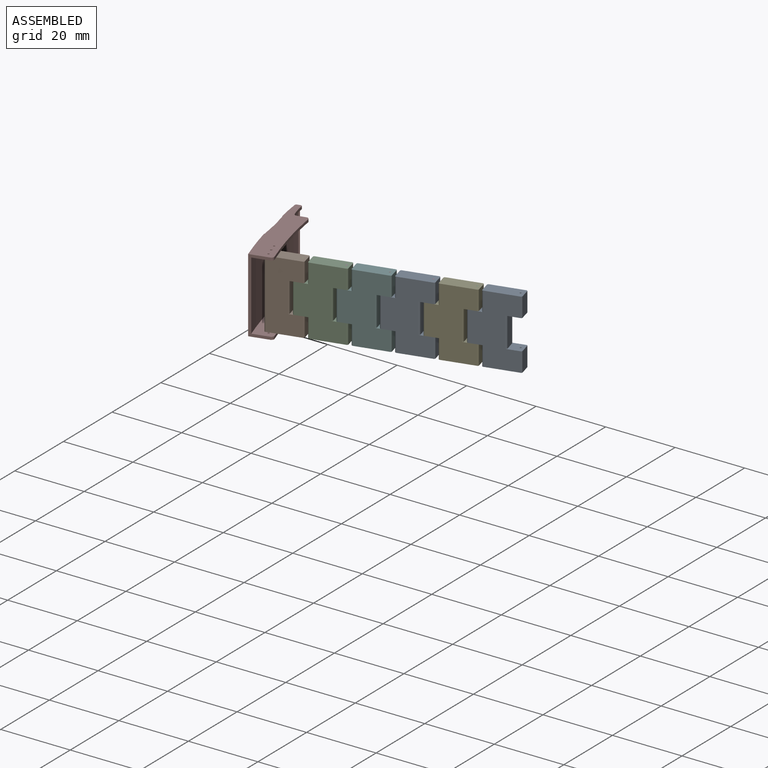
[diagram: assembled view]
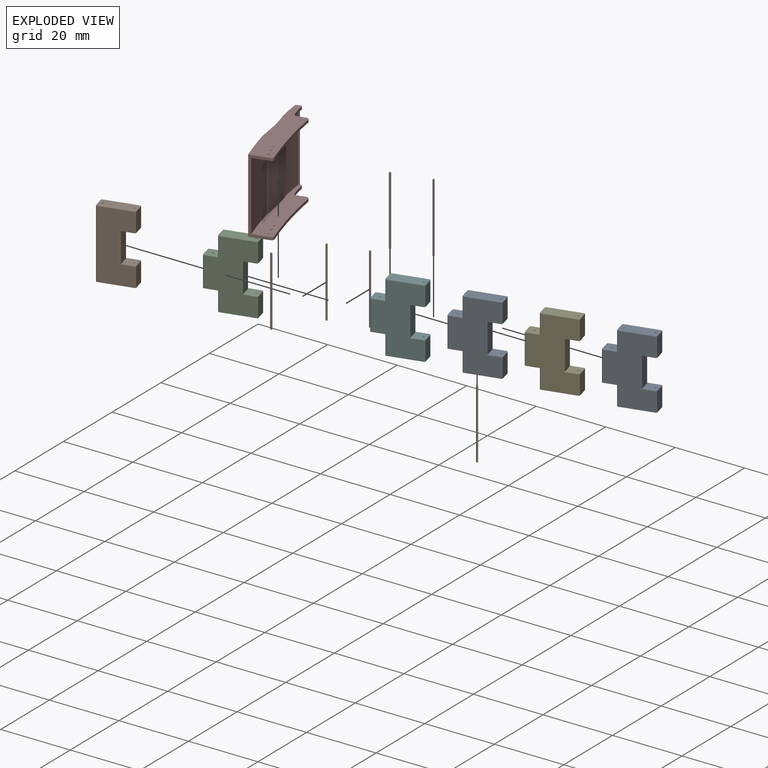
[diagram: exploded view]
GUIDED TOUR — MATED ASSEMBLY (Onshape document a81b925564c89b1a25a5d673, AutoMate assembly a81b925564c89b1a25a5d673_9c8e43b11b743d8466d85509_5456db0fa8066f07e2625f1c_default)

This assembly has 13 components, labeled P0..P12 below (a component is one placed occurrence of a part; the same part can appear more than once), held together by 12 mates. A mate is a constraint between two components; its type names the relative motion it leaves free:
  FASTENED — locks the two components together rigidly (no relative motion),
  REVOLUTE — leaves rotation about the listed axis free (a hinge).
Axis/direction vectors are unit vectors and 'through' points are millimeter coordinates, both in the assembly's world frame.

MATES
  1. FASTENED "Fastened 5": P11 <-> P8, direction (0.000, 0.000, -1.000) through (9.94, -53.46, -15.69) mm
  2. FASTENED "Fastened 8": P0 <-> P4, direction (0.000, 0.000, 1.000) through (20.58, -50.76, -1.46) mm
  3. REVOLUTE "Revolute 1": P3 <-> P10, axis (0.000, 0.000, -1.000) through (-11.34, -58.85, 4.13) mm
  4. FASTENED "Fastened 9": P1 <-> P10, direction (0.000, 0.000, 1.000) through (-21.98, -61.54, -10.10) mm
  5. FASTENED "Fastened 1": P12 <-> P1, direction (0.000, 0.000, 1.000) through (-21.98, -61.54, 4.13) mm
  6. FASTENED "Fastened 4": P8 <-> P5, direction (0.000, 0.000, -1.000) through (-0.70, -56.15, -10.10) mm
  7. FASTENED "Fastened 3": P6 <-> P5, direction (0.000, 0.000, -1.000) through (-0.70, -56.15, -15.69) mm
  8. REVOLUTE "Revolute 2": P7 <-> P9, axis (0.000, 0.000, -1.000) through (-29.72, -63.50, 4.13) mm
  9. FASTENED "Fastened 6": P4 <-> P8, direction (0.000, 0.000, -1.000) through (9.94, -53.46, -10.10) mm
  10. FASTENED "Fastened 10": P9 <-> P1, direction (0.000, 0.000, 1.000) through (-29.72, -63.50, 4.13) mm
  11. FASTENED "Fastened 7": P2 <-> P4, direction (0.000, 0.000, 1.000) through (20.58, -50.76, 4.13) mm
  12. FASTENED "Fastened 2": P5 <-> P10, direction (0.000, 0.000, -1.000) through (-11.34, -58.85, -10.10) mm

ASSEMBLY ORDER
  1. P9 — the base component [order verified]
  2. P7 [order verified]
  3. P6 [order verified]
  4. P5 [order verified]
  5. P11 [order verified]
  6. P8 [order verified]
  7. P2 [order verified]
  8. P4 [order verified]
  9. P3 [order verified]
  10. P10 [order verified]
  11. P12 [order verified]
  12. P1 [order verified]
  13. P0 [order verified]
Order-tag legend:
  [order verified] — this step's position reverses a verified removal order: the component was checked to insert without passing through the ones already placed.

Of the 13 components, 12 carry the full construction recipe — the FeatureScript program that regenerates the part's solid from scratch; the rest are supplied as boundary geometry only.
Because this assembly has more than 12 components, the tour below covers the 12 most significant ones individually (every recipe-attached component first, then the largest by part volume), in assembly order; the remaining 1 are summarized together in a grouped section at the end.
Each toured component is shown spotlighted twice — in the assembled view, then in the exploded view, where a leader line traces a displaced component back to its assembled socket (saturated green if recipe-attached, orange if geometry-only; every other component desaturated gray) — followed by its recipe or geometry summary and the mates that hold it.
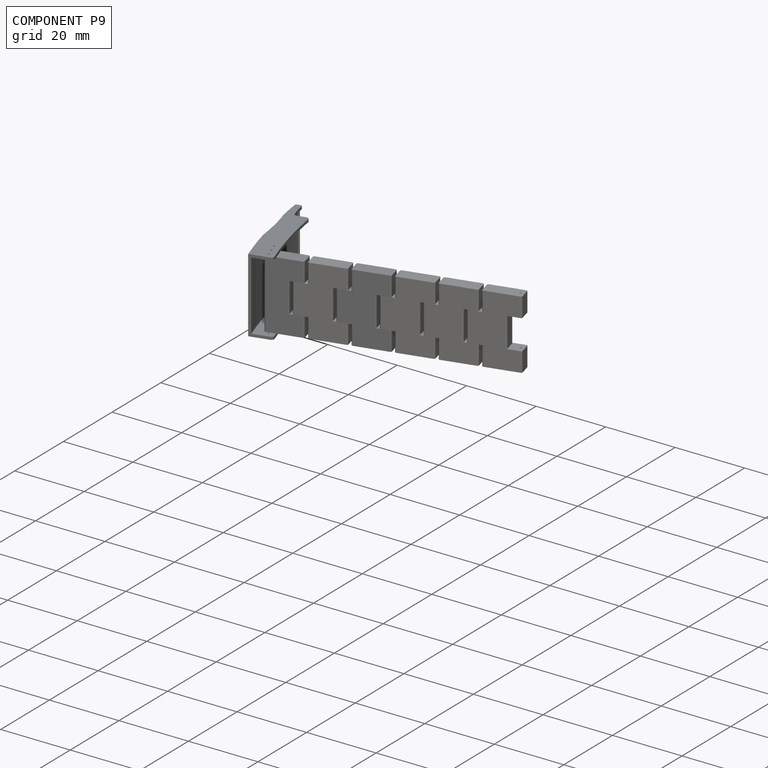
[diagram: component P9 — assembled]
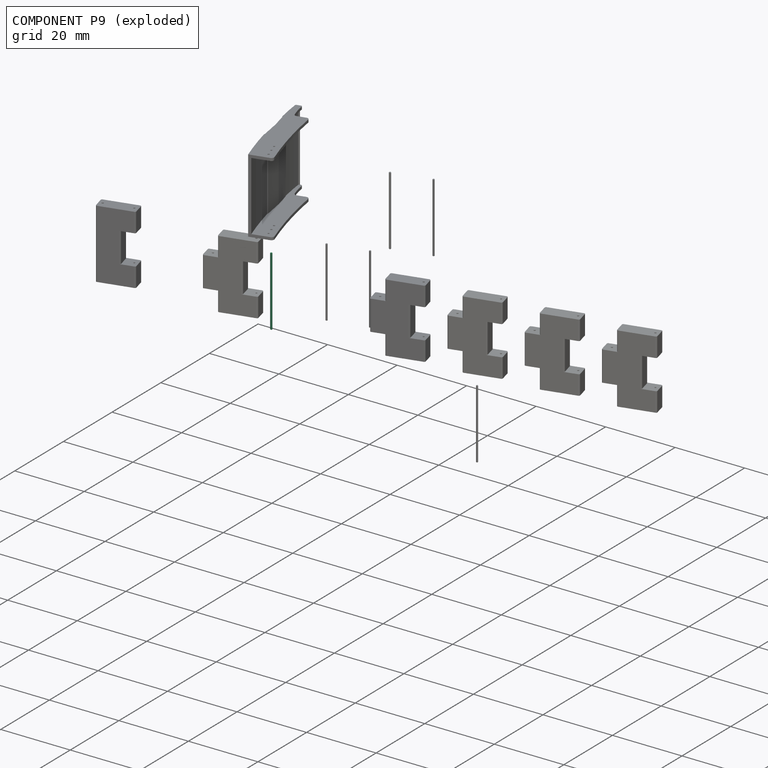
[diagram: component P9 — exploded]
COMPONENT P9 — same part as P2 (CADFS 00328580); its construction recipe is shown at P2.
Held by: REVOLUTE mate "Revolute 2" to P7; FASTENED mate "Fastened 10" to P1.
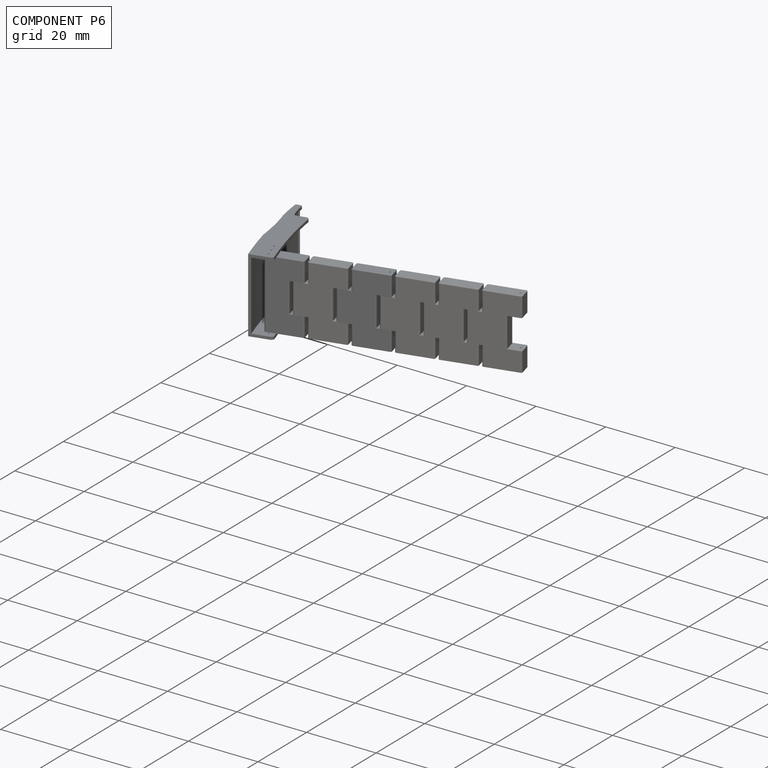
[diagram: component P6 — assembled]
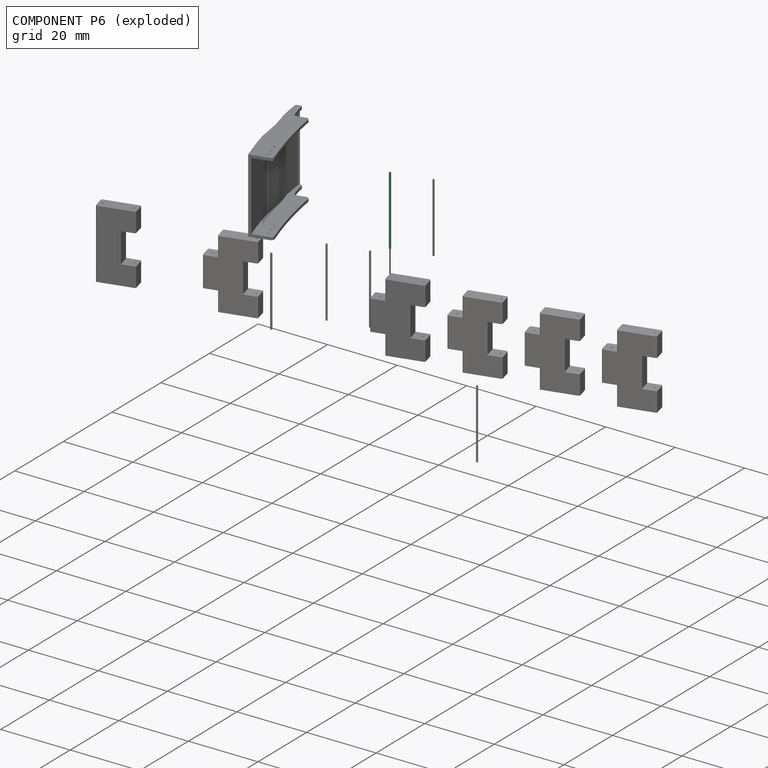
[diagram: component P6 — exploded]
COMPONENT P6 — same part as P2 (CADFS 00328580); its construction recipe is shown at P2.
Held by: FASTENED mate "Fastened 3" to P5.
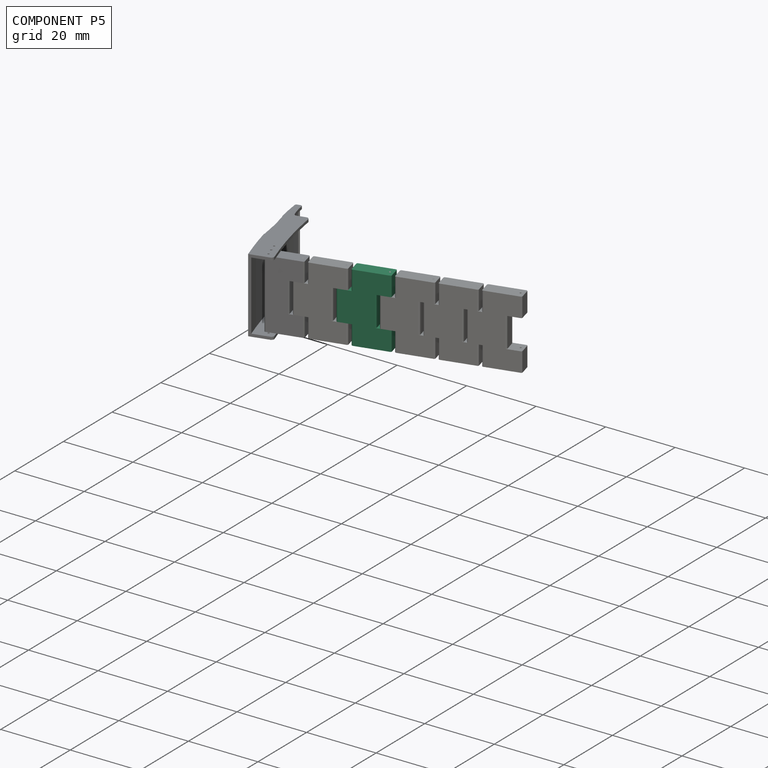
[diagram: component P5 — assembled]
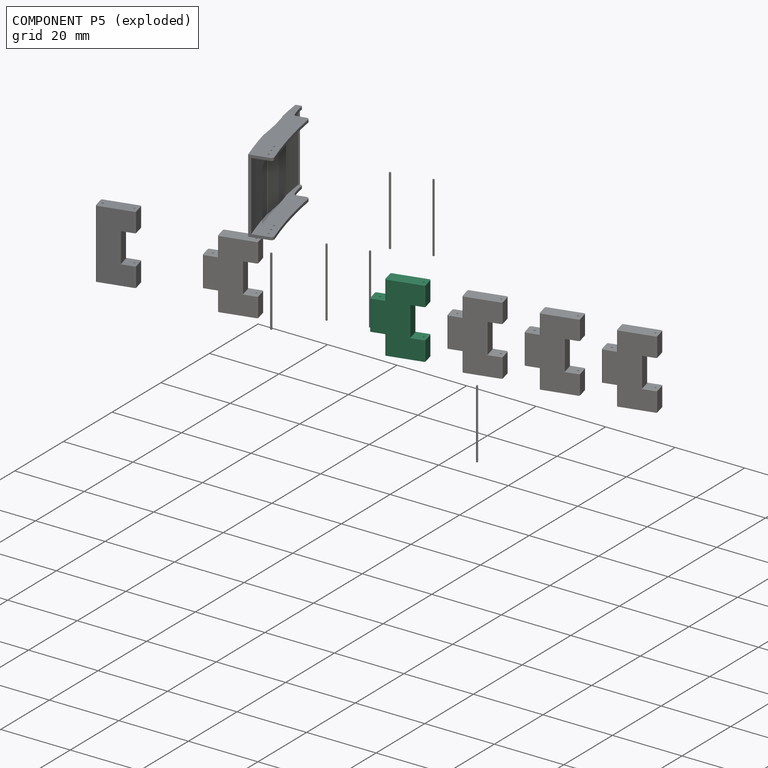
[diagram: component P5 — exploded]
COMPONENT P5 — same part as P0 (CADFS 00328578); its construction recipe is shown at P0.
Held by: FASTENED mate "Fastened 4" to P8; FASTENED mate "Fastened 3" to P6; FASTENED mate "Fastened 2" to P10.
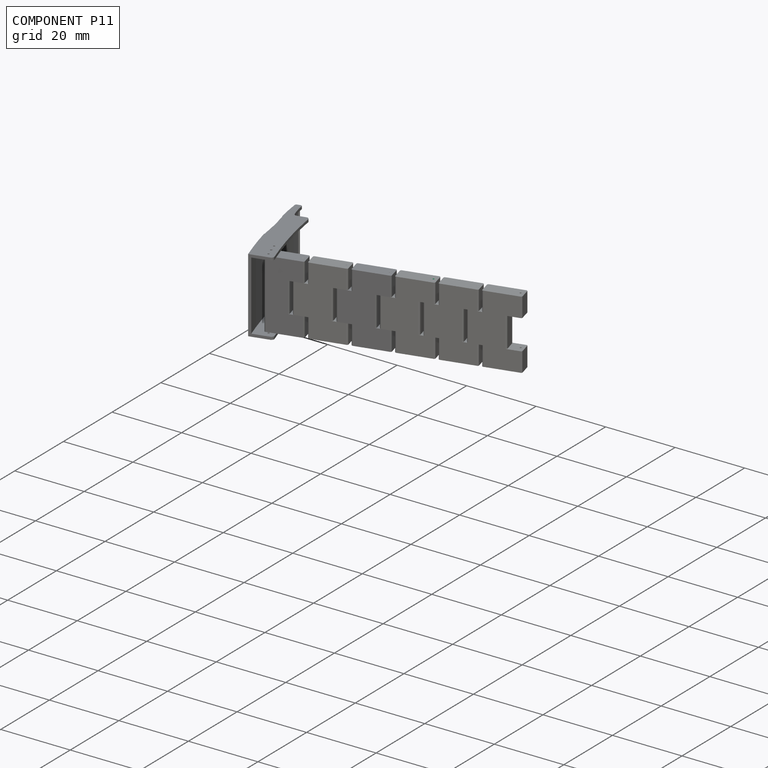
[diagram: component P11 — assembled]
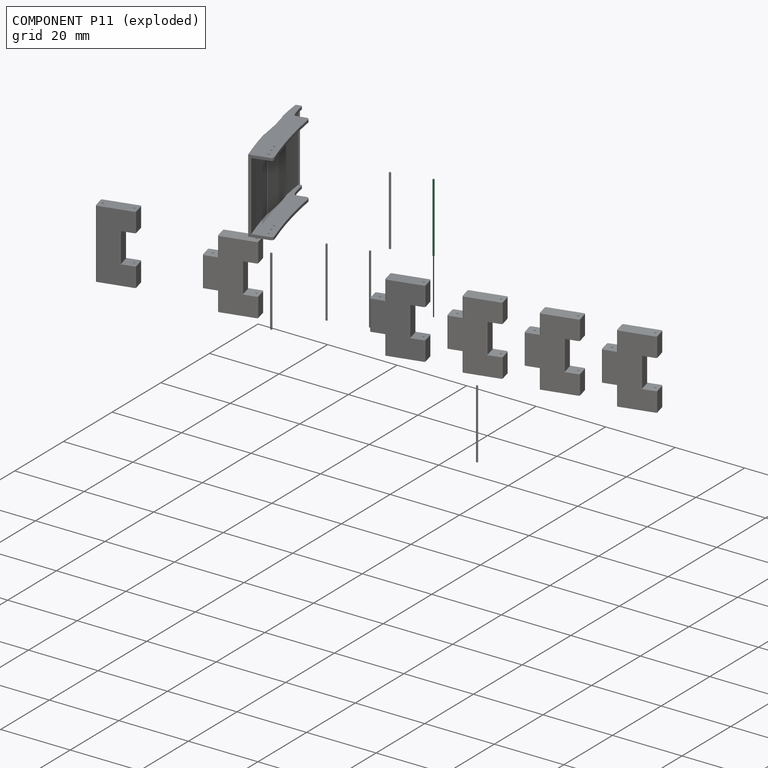
[diagram: component P11 — exploded]
COMPONENT P11 — same part as P2 (CADFS 00328580); its construction recipe is shown at P2.
Held by: FASTENED mate "Fastened 5" to P8.
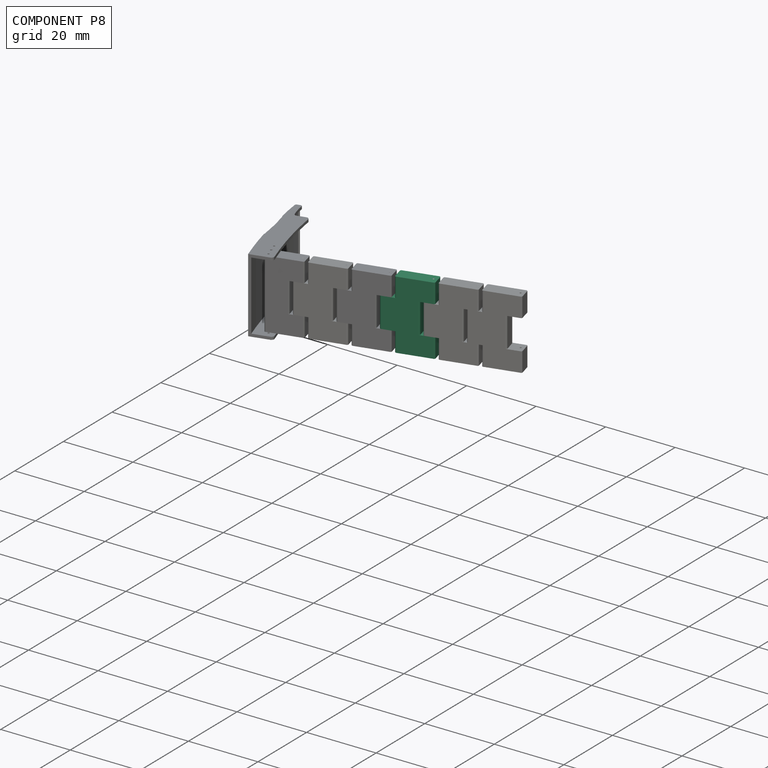
[diagram: component P8 — assembled]
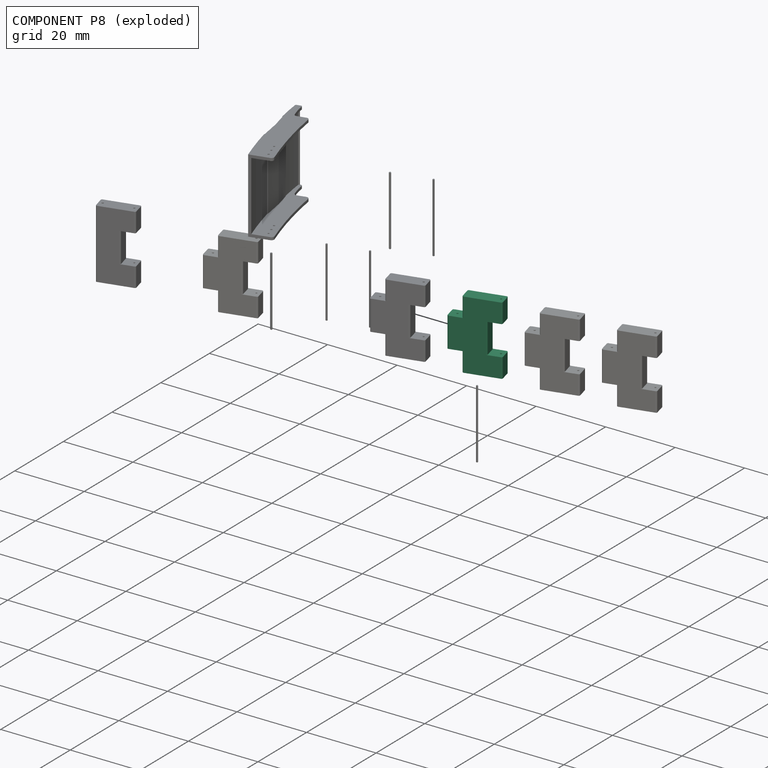
[diagram: component P8 — exploded]
COMPONENT P8 — same part as P0 (CADFS 00328578); its construction recipe is shown at P0.
Held by: FASTENED mate "Fastened 5" to P11; FASTENED mate "Fastened 4" to P5; FASTENED mate "Fastened 6" to P4.
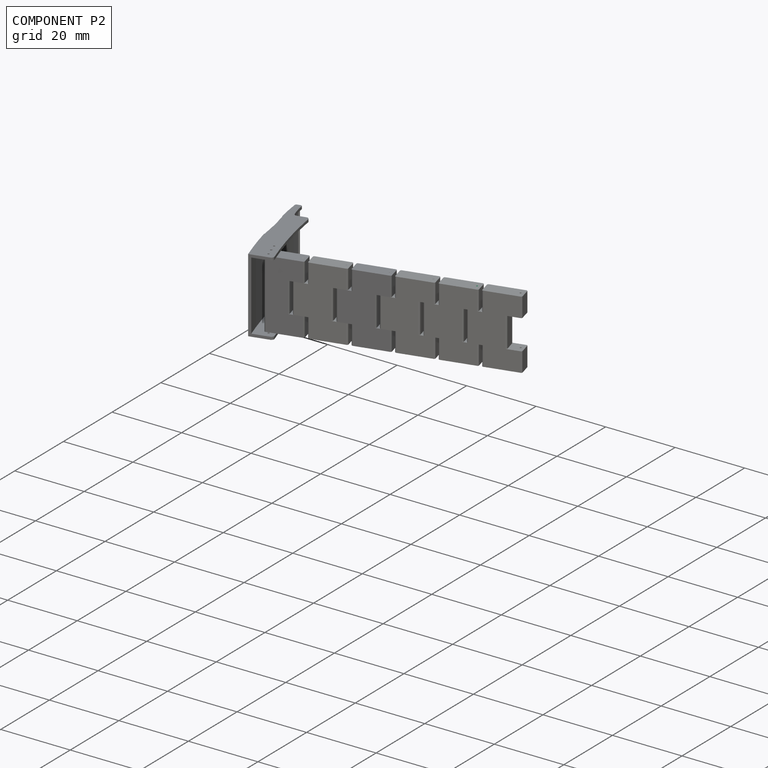
[diagram: component P2 — assembled]
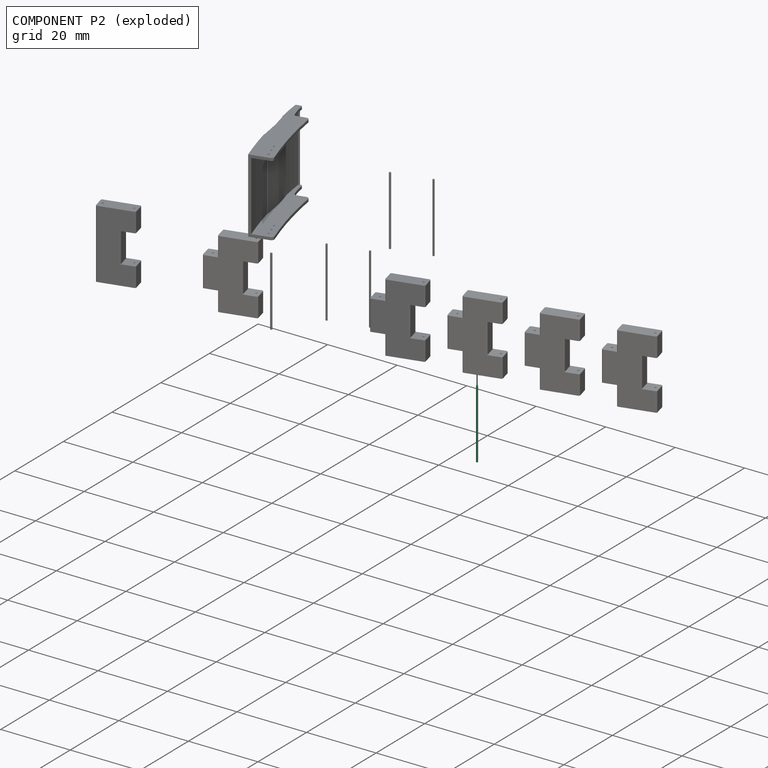
[diagram: component P2 — exploded]
COMPONENT P2 — recipe-attached (CADFS 00328580, mesh-verified: the recipe's output STEP matches this component's geometry to below the mesh-comparison resolution (tessellation chordal tolerance ~0.0299 mm)).
Held by: FASTENED mate "Fastened 7" to P4.
Construction recipe (FeatureScript — the CAD program that rebuilds this solid; sketch coordinates are in the units given by the * unit suffixes, e.g. mm):

FeatureScript 1511;
import(path : "onshape/std/geometry.fs", version : "1511.0");
import(path : "onshape/std/common.fs", version : "1511.0");
const mm = millimeter;
const VERTEX = EntityType.VERTEX;
const EDGE = EntityType.EDGE;
const FACE = EntityType.FACE;
const BODY = EntityType.BODY;
function v(x, y){return vector(x, y);}
function OD(order){return orderDisambiguation(order);}
function OSD(set){return originalSetDisambiguation(set);}
function TD(topology){return topologyDisambiguation(topology);}
function TDD(query){return trueDependencyDisambiguation(query);}
function sQuery(a, b, c) {return sketchEntityQuery(a, b, c);}

annotation { "Feature Type Name" : "Feature", "Feature Type Description" : "" }
export const myFeature = defineFeature(function(context is Context, id is Id, definition is map)
    precondition{}
    {
        {
            var Q0;
            Q0=qCreatedBy(makeId("Front.planeOp"),FACE);
            var sketch = newSketch(context, id + "F0", { "sketchPlane" : qUnion([Q0])});
            skCircle(sketch, "E0", {"center": v(0, 0) * mm, "radius": 0.25 * mm});
            skSolve(sketch);
        }
        {
            var Q0;
            Q0 = qSketchRegion(id + "F0", true);
            extrude(context, id + "F1", {"entities" : qUnion([Q0]), "depth" : 19.94 * mm});
        }
        {
            var Q0;
            Q0=makeQuery(id+"F1.opExtrude","CAP_EDGE",EDGE,{"disambiguationData":[OSD([sQuery(id+"F0.wireOp",EDGE,"E0")])],"isStart":false});
            var Q1;
            Q1=makeQuery(id+"F1.opExtrude","CAP_EDGE",EDGE,{"disambiguationData":[OSD([sQuery(id+"F0.wireOp",EDGE,"E0")])],"isStart":true});
            chamfer(context, id + "F2", {"entities" : qUnion([Q0, Q1]), "width" : 0.05 * mm, "tangentPropagation" : true});
        }
    });
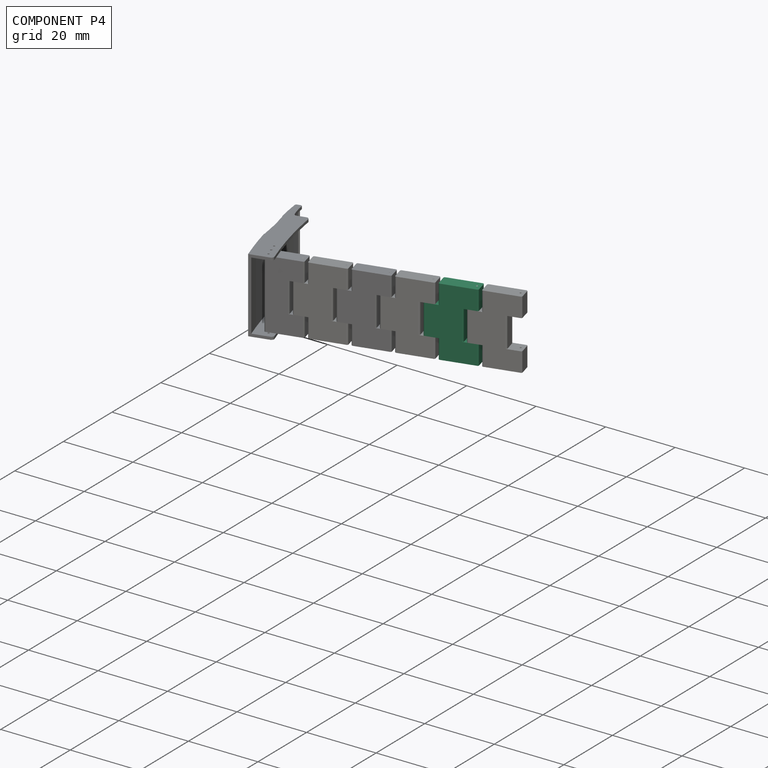
[diagram: component P4 — assembled]
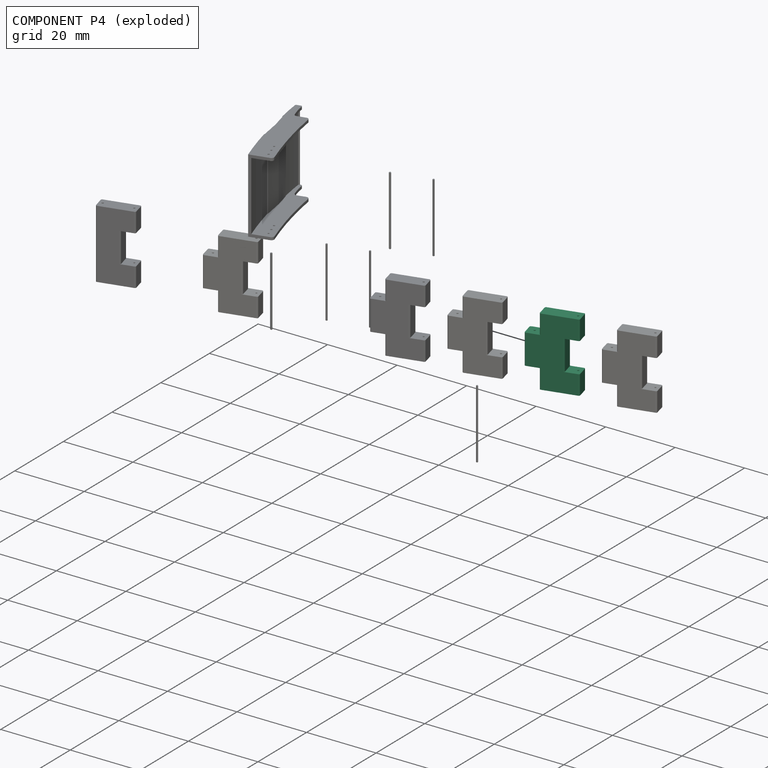
[diagram: component P4 — exploded]
COMPONENT P4 — same part as P0 (CADFS 00328578); its construction recipe is shown at P0.
Held by: FASTENED mate "Fastened 8" to P0; FASTENED mate "Fastened 6" to P8; FASTENED mate "Fastened 7" to P2.
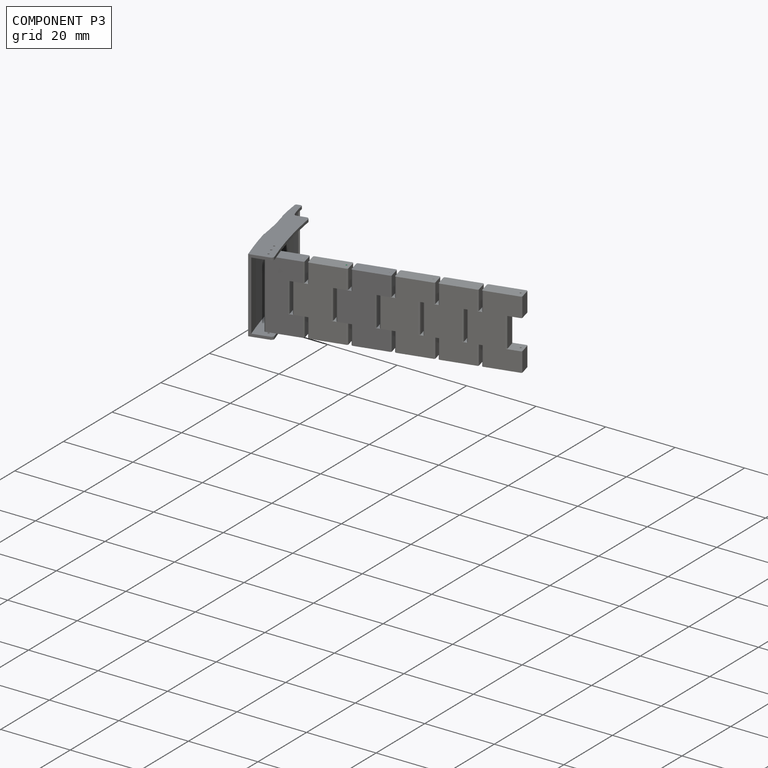
[diagram: component P3 — assembled]
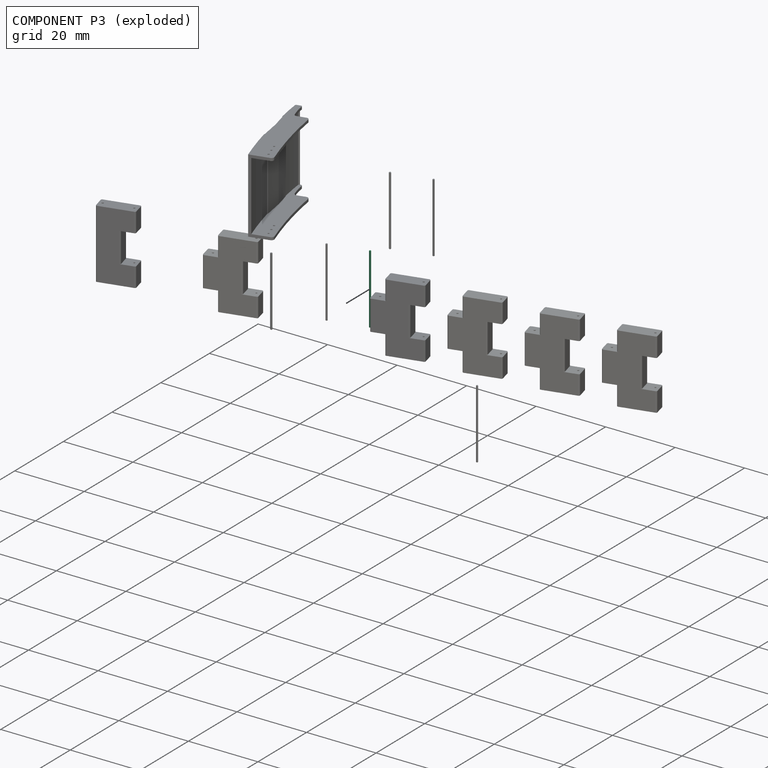
[diagram: component P3 — exploded]
COMPONENT P3 — same part as P2 (CADFS 00328580); its construction recipe is shown at P2.
Held by: REVOLUTE mate "Revolute 1" to P10.
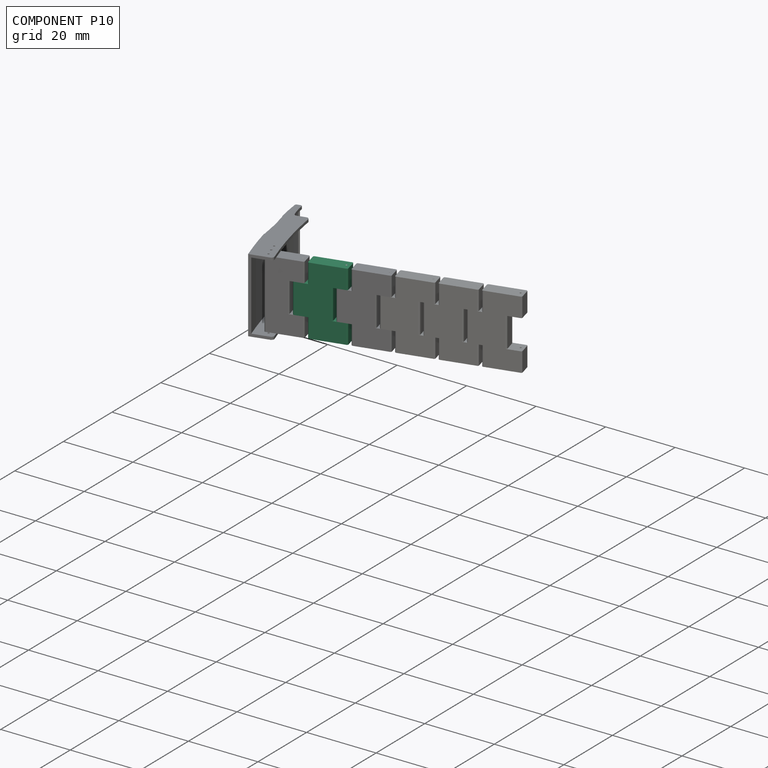
[diagram: component P10 — assembled]
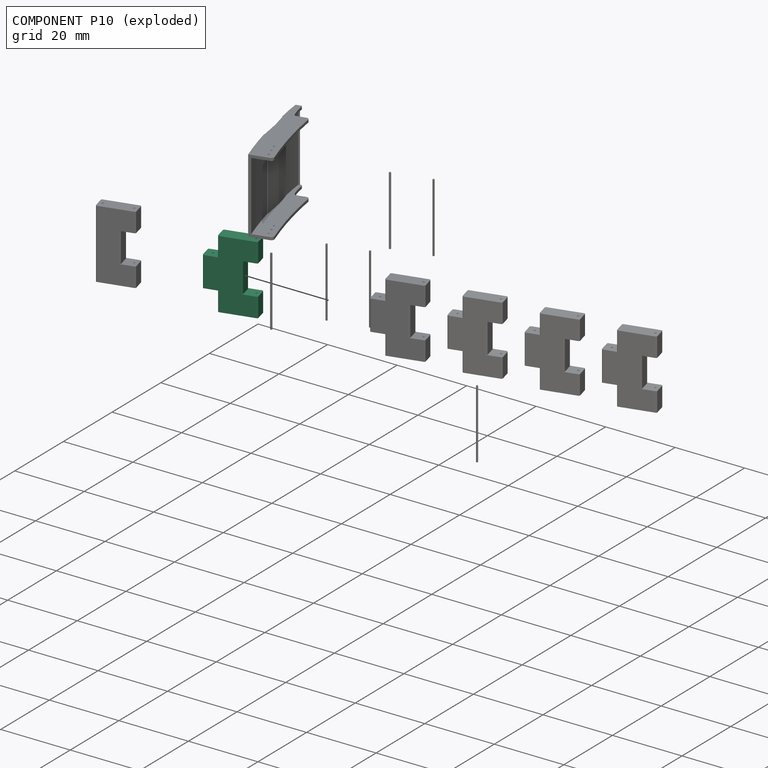
[diagram: component P10 — exploded]
COMPONENT P10 — same part as P0 (CADFS 00328578); its construction recipe is shown at P0.
Held by: REVOLUTE mate "Revolute 1" to P3; FASTENED mate "Fastened 9" to P1; FASTENED mate "Fastened 2" to P5.
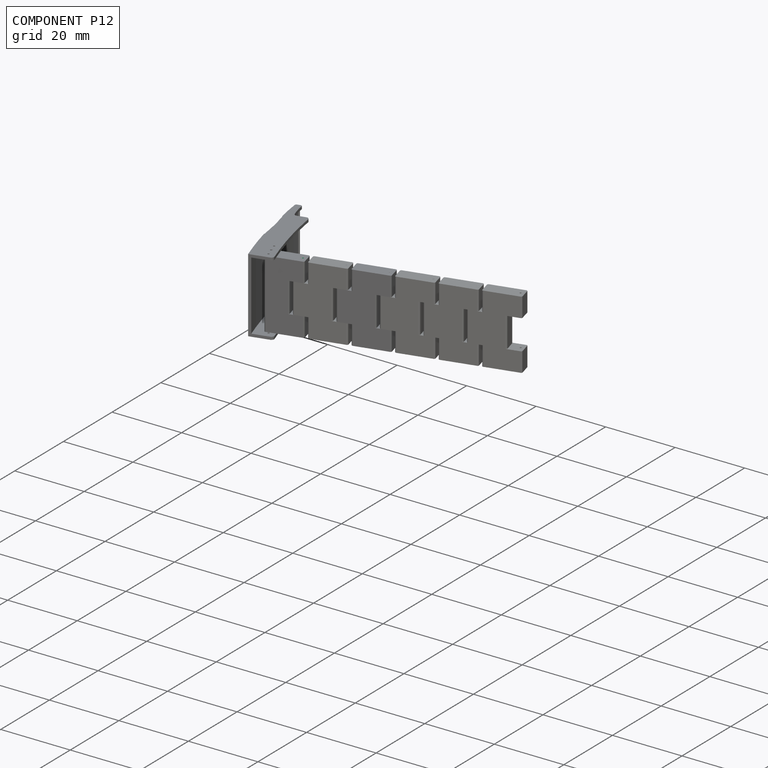
[diagram: component P12 — assembled]
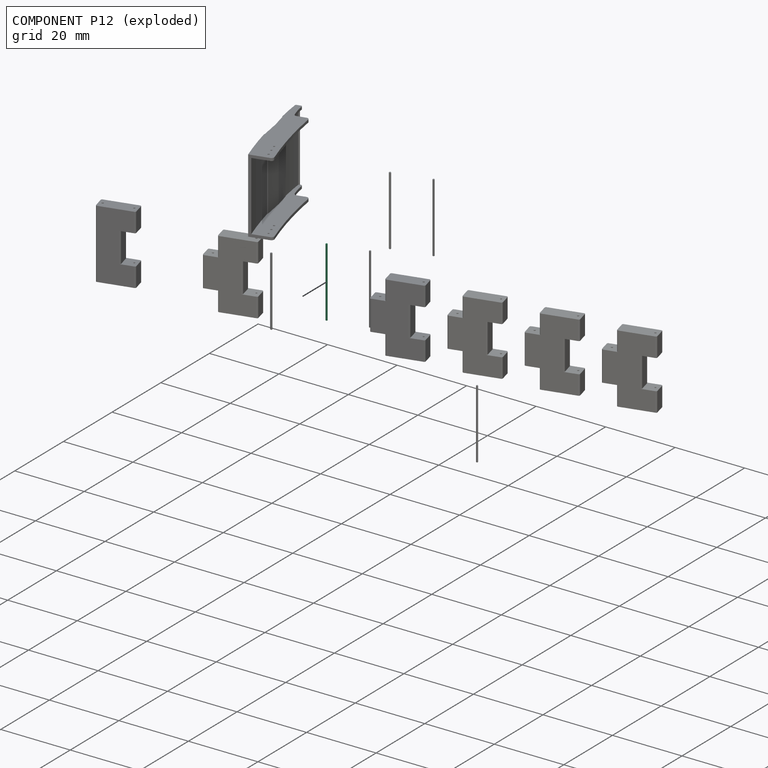
[diagram: component P12 — exploded]
COMPONENT P12 — same part as P2 (CADFS 00328580); its construction recipe is shown at P2.
Held by: FASTENED mate "Fastened 1" to P1.
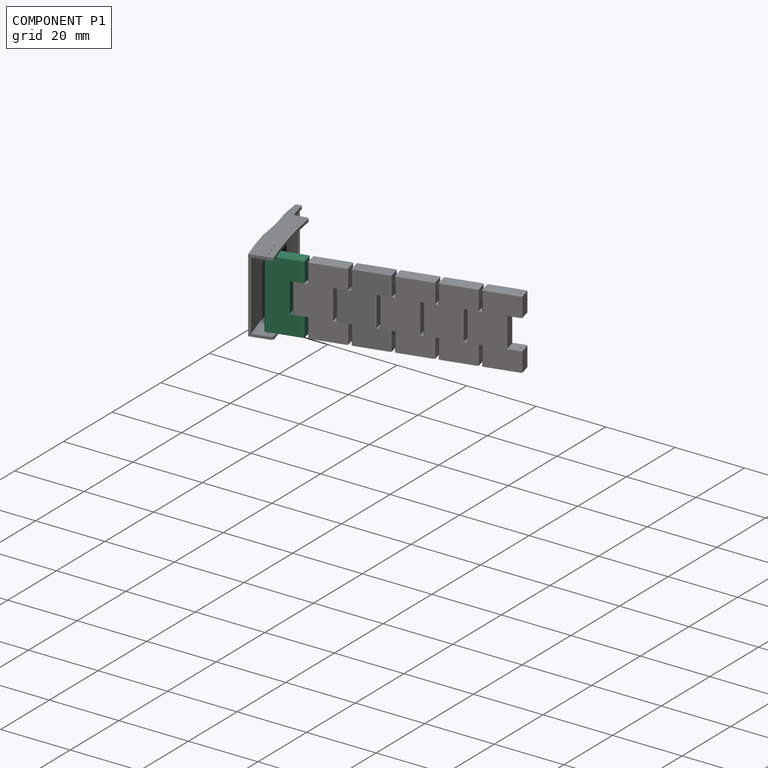
[diagram: component P1 — assembled]
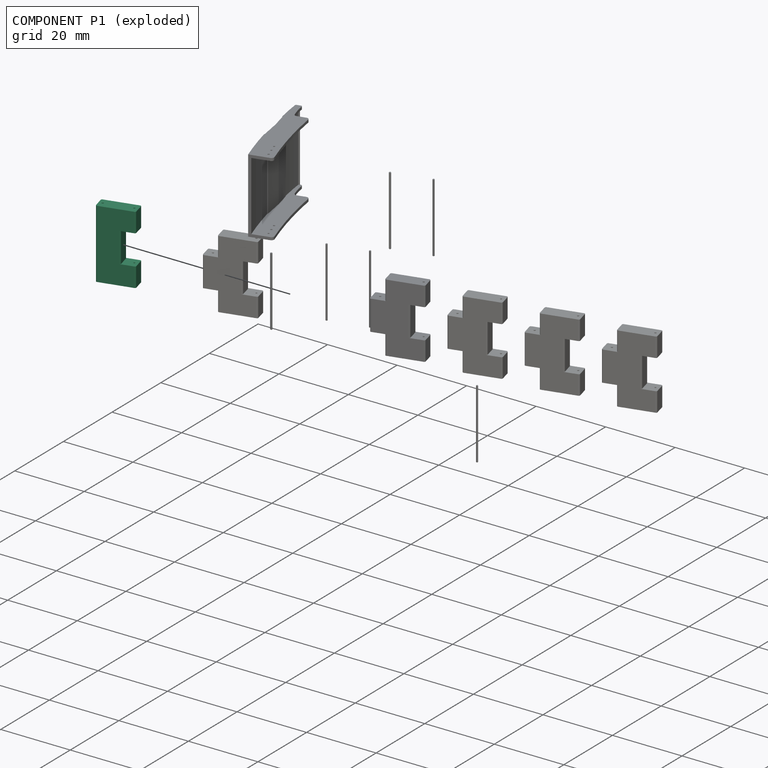
[diagram: component P1 — exploded]
COMPONENT P1 — recipe-attached (CADFS 00328579, mesh-verified: the recipe's output STEP matches this component's geometry to below the mesh-comparison resolution (tessellation chordal tolerance ~0.0339 mm)).
Held by: FASTENED mate "Fastened 9" to P10; FASTENED mate "Fastened 1" to P12; FASTENED mate "Fastened 10" to P9.
Construction recipe (FeatureScript — the CAD program that rebuilds this solid; sketch coordinates are in the units given by the * unit suffixes, e.g. mm):

FeatureScript 1511;
import(path : "onshape/std/geometry.fs", version : "1511.0");
import(path : "onshape/std/common.fs", version : "1511.0");
const mm = millimeter;
const VERTEX = EntityType.VERTEX;
const EDGE = EntityType.EDGE;
const FACE = EntityType.FACE;
const BODY = EntityType.BODY;
function v(x, y){return vector(x, y);}
function OD(order){return orderDisambiguation(order);}
function OSD(set){return originalSetDisambiguation(set);}
function TD(topology){return topologyDisambiguation(topology);}
function TDD(query){return trueDependencyDisambiguation(query);}
function sQuery(a, b, c) {return sketchEntityQuery(a, b, c);}

annotation { "Feature Type Name" : "Feature", "Feature Type Description" : "" }
export const myFeature = defineFeature(function(context is Context, id is Id, definition is map)
    precondition{}
    {
        {
            var Q0;
            Q0=qCreatedBy(makeId("Front.planeOp"),FACE);
            var sketch = newSketch(context, id + "F0", { "sketchPlane" : qUnion([Q0])});
            skLineSegment(sketch, "E0.bottom", {"start": v(17.02, -29.15) * mm, "end": v(27.18, -29.15) * mm});
            skLineSegment(sketch, "E0.top", {"start": v(17.02, -48.96) * mm, "end": v(27.18, -48.96) * mm});
            skLineSegment(sketch, "E0.left", {"start": v(17.02, -29.15) * mm, "end": v(17.02, -34.73) * mm});
            skLineSegment(sketch, "E0.right", {"start": v(27.18, -29.15) * mm, "end": v(27.18, -34.73) * mm});
            skLineSegment(sketch, "E1", {"start": v(17.02, -48.96) * mm, "end": v(23.37, -48.96) * mm});
            skLineSegment(sketch, "E2", {"start": v(23.37, -43.37) * mm, "end": v(23.37, -34.73) * mm});
            skLineSegment(sketch, "E3", {"start": v(27.18, -34.73) * mm, "end": v(23.37, -34.73) * mm});
            skLineSegment(sketch, "E4", {"start": v(27.18, -48.96) * mm, "end": v(27.18, -43.37) * mm});
            skLineSegment(sketch, "E5", {"start": v(27.18, -43.37) * mm, "end": v(23.37, -43.37) * mm});
            skLineSegment(sketch, "E6.trimOffspring", {"start": v(27.18, -43.37) * mm, "end": v(27.18, -48.96) * mm});
            skLineSegment(sketch, "E7.trimOffspring", {"start": v(17.02, -43.37) * mm, "end": v(17.02, -48.96) * mm});
            skLineSegment(sketch, "E8", {"start": v(17.02, -43.37) * mm, "end": v(23.37, -43.37) * mm});
            skLineSegment(sketch, "E9", {"start": v(23.37, -34.73) * mm, "end": v(17.02, -34.73) * mm});
            skLineSegment(sketch, "E10", {"start": v(17.02, -34.73) * mm, "end": v(17.02, -43.37) * mm});
            skPoint(sketch, "E11.start.orphan", {"position": v(13.21, -34.73) * mm});
            skSolve(sketch);
        }
        {
            var Q0;
            Q0=makeQuery(id+"F0.imprint","IMPRINT",FACE,{"disambiguationData":[TD([[makeQuery(id+"F0.imprint","IMPRINT",EDGE,{"derivedFrom":sQuery(id+"F0.wireOp",EDGE,"E2")}),1.0]])]});
            extrude(context, id + "F1", {"entities" : qUnion([Q0]), "depth" : 3.8 * mm});
        }
        {
            var Q0;
            Q0=makeQuery(id+"F1.opExtrude","CAP_FACE",FACE,{"disambiguationData":[OSD([sQuery(id+"F0.wireOp",EDGE,"E2"),sQuery(id+"F0.wireOp",EDGE,"kWP5FoFF-B6KL-BZVV-yxeF-1pJlTzE3f1qg"),sQuery(id+"F0.wireOp",EDGE,"NCTPWaSt-j8r5-npNt-1snH-QZKrF3ifEW0c"),sQuery(id+"F0.wireOp",EDGE,"E11"),sQuery(id+"F0.wireOp",EDGE,"E8"),sQuery(id+"F0.wireOp",EDGE,"E9")])],"isStart":false});
            var sketch = newSketch(context, id + "F2", { "sketchPlane" : qUnion([Q0])});
            skLineSegment(sketch, "E12.bottom", {"start": v(17.02, -29.15) * mm, "end": v(27.18, -29.15) * mm});
            skLineSegment(sketch, "E12.left", {"start": v(17.02, -29.15) * mm, "end": v(17.02, -34.73) * mm});
            skLineSegment(sketch, "E13", {"start": v(27.18, -29.15) * mm, "end": v(27.18, -34.73) * mm});
            skLineSegment(sketch, "E14", {"start": v(27.18, -34.73) * mm, "end": v(23.37, -34.73) * mm});
            skLineSegment(sketch, "E15", {"start": v(23.37, -34.73) * mm, "end": v(17.02, -34.73) * mm});
            skLineSegment(sketch, "E16.MirrorCS", {"start": v(23.37, -43.37) * mm, "end": v(17.02, -43.37) * mm});
            skLineSegment(sketch, "E17.MirrorCS", {"start": v(27.18, -43.37) * mm, "end": v(23.37, -43.37) * mm});
            skLineSegment(sketch, "E18.MirrorCS", {"start": v(27.18, -48.96) * mm, "end": v(27.18, -43.37) * mm});
            skLineSegment(sketch, "E19.MirrorCS", {"start": v(17.02, -48.96) * mm, "end": v(17.02, -43.37) * mm});
            skLineSegment(sketch, "E20.MirrorCS", {"start": v(17.02, -48.96) * mm, "end": v(27.18, -48.96) * mm});
            skSolve(sketch);
        }
        {
            var Q0;
            Q0=qSketchRegion(id+"F2",true);
            extrude(context, id + "F3", {"entities" : qUnion([Q0]), "operationType" : NewBodyOperationType.ADD, "oppositeDirection" : true, "depth" : 3.81 * mm, "hasSecondDirection" : true, "secondDirectionOppositeDirection" : true, "secondDirectionDepth" : 0 * mm});
        }
        {
            var Q0;
            Q0=makeQuery(id+"F3.opExtrude","SWEPT_FACE",FACE,{"disambiguationData":[OSD([sQuery(id+"F2.wireOp",EDGE,"E20.MirrorCS")])]});
            var sketch = newSketch(context, id + "F4", { "sketchPlane" : qUnion([Q0])});
            skCircle(sketch, "E21", {"center": v(26.1, 1.9) * mm, "radius": 0.25 * mm});
            skLineSegment(sketch, "E22", {"start": v(22.1, 0) * mm, "end": v(22.1, 3.8) * mm});
            skCircle(sketch, "E23.MirrorC", {"center": v(18.11, 1.9) * mm, "radius": 0.25 * mm});
            skSolve(sketch);
        }
        {
            var Q0;
            Q0=qSketchRegion(id+"F4",true);
            extrude(context, id + "F5", {"entities" : qUnion([Q0]), "operationType" : NewBodyOperationType.REMOVE, "oppositeDirection" : true, "depth" : 50.8 * mm});
        }
        {
            var Q0;
            Q0=makeQuery(id+"F3.opExtrude","CAP_EDGE",EDGE,{"disambiguationData":[OSD([sQuery(id+"F2.wireOp",EDGE,"E13")])],"isStart":true});
            var Q1;
            Q1=makeQuery(id+"F3.opExtrude","CAP_EDGE",EDGE,{"disambiguationData":[OSD([sQuery(id+"F2.wireOp",EDGE,"E12.left")])],"isStart":true});
            var Q2;
            Q2=makeQuery(id+"F3.opExtrude","CAP_EDGE",EDGE,{"disambiguationData":[OSD([sQuery(id+"F2.wireOp",EDGE,"E18.MirrorCS")])],"isStart":true});
            var Q3;
            Q3=makeQuery(id+"F3.opExtrude","CAP_EDGE",EDGE,{"disambiguationData":[OSD([sQuery(id+"F2.wireOp",EDGE,"E19.MirrorCS")])],"isStart":true});
            var Q4;
            Q4=makeQuery(id+"F1.opExtrude","CAP_EDGE",EDGE,{"disambiguationData":[OSD([sQuery(id+"F0.wireOp",EDGE,"E2")])],"isStart":false});
            var Q5;
            Q5=makeQuery(id+"F1.opExtrude","CAP_EDGE",EDGE,{"disambiguationData":[OSD([sQuery(id+"F0.wireOp",EDGE,"NCTPWaSt-j8r5-npNt-1snH-QZKrF3ifEW0c")])],"isStart":false});
            var Q6;
            Q6=makeQuery(id+"F1.opExtrude","CAP_EDGE",EDGE,{"disambiguationData":[OSD([sQuery(id+"F0.wireOp",EDGE,"E2")])],"isStart":true});
            var Q7;
            Q7=makeQuery(id+"F1.opExtrude","CAP_EDGE",EDGE,{"disambiguationData":[OSD([sQuery(id+"F0.wireOp",EDGE,"NCTPWaSt-j8r5-npNt-1snH-QZKrF3ifEW0c")])],"isStart":true});
            var Q8;
            Q8=makeQuery(id+"F3.opExtrude","CAP_EDGE",EDGE,{"disambiguationData":[OSD([sQuery(id+"F2.wireOp",EDGE,"E12.left")])],"isStart":false});
            var Q9;
            Q9=makeQuery(id+"F3.opExtrude","CAP_EDGE",EDGE,{"disambiguationData":[OSD([sQuery(id+"F2.wireOp",EDGE,"E13")])],"isStart":false});
            var Q10;
            Q10=makeQuery(id+"F3.opExtrude","CAP_EDGE",EDGE,{"disambiguationData":[OSD([sQuery(id+"F2.wireOp",EDGE,"E18.MirrorCS")])],"isStart":false});
            var Q11;
            Q11=makeQuery(id+"F3.opExtrude","CAP_EDGE",EDGE,{"disambiguationData":[OSD([sQuery(id+"F2.wireOp",EDGE,"E19.MirrorCS")])],"isStart":false});
            var Q12;
            Q12=makeQuery(id+"F3.boolean.opBoolean","MERGE",EDGE,{"derivedFrom":[makeQuery(id+"F1.opExtrude","CAP_EDGE",EDGE,{"disambiguationData":[OSD([sQuery(id+"F0.wireOp",EDGE,"E11"),sQuery(id+"F0.wireOp",EDGE,"E9")])],"isStart":false}),makeQuery(id+"F3.opExtrude","CAP_EDGE",EDGE,{"disambiguationData":[OSD([sQuery(id+"F2.wireOp",EDGE,"E14"),sQuery(id+"F2.wireOp",EDGE,"E15")])],"isStart":true})]});
            fillet(context, id + "F6", {"entities" : qUnion([Q0, Q1, Q2, Q3, Q4, Q5, Q6, Q7, Q8, Q9, Q10, Q11, Q12]), "radius" : 0.38 * mm, "tangentPropagation" : true, "allowEdgeOverflow" : false});
        }
    });
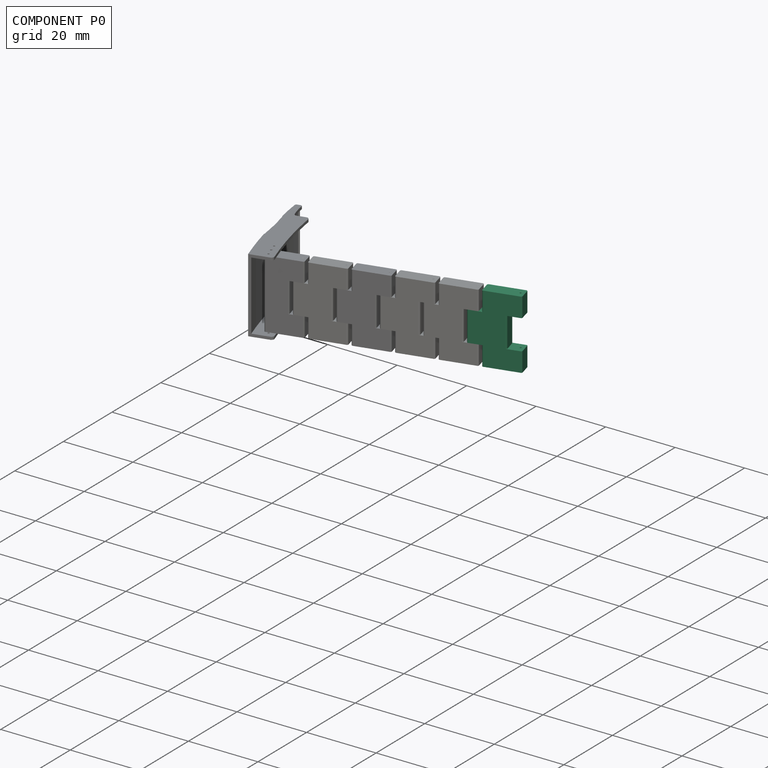
[diagram: component P0 — assembled]
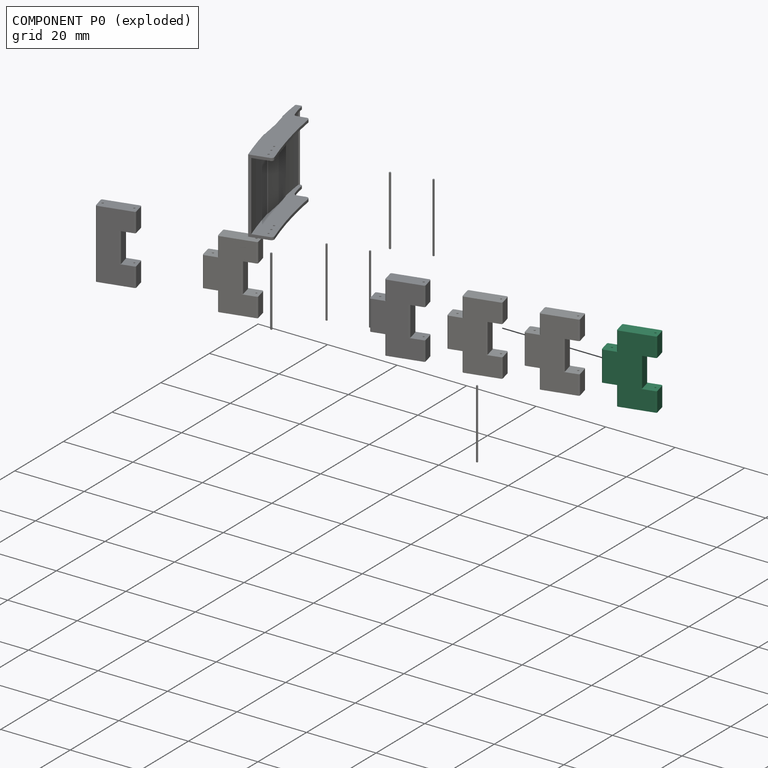
[diagram: component P0 — exploded]
COMPONENT P0 — recipe-attached (CADFS 00328578, mesh-verified: the recipe's output STEP matches this component's geometry to below the mesh-comparison resolution (tessellation chordal tolerance ~0.0368 mm)).
Held by: FASTENED mate "Fastened 8" to P4.
Construction recipe (FeatureScript — the CAD program that rebuilds this solid; sketch coordinates are in the units given by the * unit suffixes, e.g. mm):

FeatureScript 1511;
import(path : "onshape/std/geometry.fs", version : "1511.0");
import(path : "onshape/std/common.fs", version : "1511.0");
const mm = millimeter;
const VERTEX = EntityType.VERTEX;
const EDGE = EntityType.EDGE;
const FACE = EntityType.FACE;
const BODY = EntityType.BODY;
function v(x, y){return vector(x, y);}
function OD(order){return orderDisambiguation(order);}
function OSD(set){return originalSetDisambiguation(set);}
function TD(topology){return topologyDisambiguation(topology);}
function TDD(query){return trueDependencyDisambiguation(query);}
function sQuery(a, b, c) {return sketchEntityQuery(a, b, c);}

annotation { "Feature Type Name" : "Feature", "Feature Type Description" : "" }
export const myFeature = defineFeature(function(context is Context, id is Id, definition is map)
    precondition{}
    {
        {
            var Q0;
            Q0=qCreatedBy(makeId("Front.planeOp"),FACE);
            var sketch = newSketch(context, id + "F0", { "sketchPlane" : qUnion([Q0])});
            skLineSegment(sketch, "E0.bottom", {"start": v(17.02, -29.15) * mm, "end": v(27.18, -29.15) * mm});
            skLineSegment(sketch, "E0.top", {"start": v(17.02, -48.96) * mm, "end": v(27.18, -48.96) * mm});
            skLineSegment(sketch, "E0.left", {"start": v(17.02, -29.15) * mm, "end": v(17.02, -34.73) * mm});
            skLineSegment(sketch, "E0.right", {"start": v(27.18, -29.15) * mm, "end": v(27.18, -34.73) * mm});
            skLineSegment(sketch, "E1", {"start": v(17.02, -48.96) * mm, "end": v(23.37, -48.96) * mm});
            skLineSegment(sketch, "E2", {"start": v(23.37, -43.37) * mm, "end": v(23.37, -34.73) * mm});
            skLineSegment(sketch, "E3", {"start": v(27.18, -34.73) * mm, "end": v(23.37, -34.73) * mm});
            skLineSegment(sketch, "E4", {"start": v(27.18, -48.96) * mm, "end": v(27.18, -43.37) * mm});
            skLineSegment(sketch, "E5", {"start": v(27.18, -43.37) * mm, "end": v(23.37, -43.37) * mm});
            skLineSegment(sketch, "E6.trimOffspring", {"start": v(27.18, -43.37) * mm, "end": v(27.18, -48.96) * mm});
            skLineSegment(sketch, "E7", {"start": v(17.02, -43.37) * mm, "end": v(13.21, -43.37) * mm});
            skLineSegment(sketch, "E8", {"start": v(13.21, -43.37) * mm, "end": v(13.21, -34.73) * mm});
            skLineSegment(sketch, "E9", {"start": v(13.21, -34.73) * mm, "end": v(17.02, -34.73) * mm});
            skLineSegment(sketch, "E10.trimOffspring", {"start": v(17.02, -43.37) * mm, "end": v(17.02, -48.96) * mm});
            skLineSegment(sketch, "E11", {"start": v(17.02, -43.37) * mm, "end": v(23.37, -43.37) * mm});
            skLineSegment(sketch, "E12", {"start": v(23.37, -34.73) * mm, "end": v(17.02, -34.73) * mm});
            skSolve(sketch);
        }
        {
            var Q0;
            Q0=makeQuery(id+"F0.imprint","IMPRINT",FACE,{"disambiguationData":[TD([[makeQuery(id+"F0.imprint","IMPRINT",EDGE,{"derivedFrom":sQuery(id+"F0.wireOp",EDGE,"E2")}),1.0]])]});
            extrude(context, id + "F1", {"entities" : qUnion([Q0]), "depth" : 3.8 * mm});
        }
        {
            var Q0;
            Q0=makeQuery(id+"F1.opExtrude","CAP_FACE",FACE,{"disambiguationData":[OSD([sQuery(id+"F0.wireOp",EDGE,"E2"),sQuery(id+"F0.wireOp",EDGE,"E7"),sQuery(id+"F0.wireOp",EDGE,"E8"),sQuery(id+"F0.wireOp",EDGE,"E9"),sQuery(id+"F0.wireOp",EDGE,"E11"),sQuery(id+"F0.wireOp",EDGE,"E12")])],"isStart":false});
            var sketch = newSketch(context, id + "F2", { "sketchPlane" : qUnion([Q0])});
            skLineSegment(sketch, "E13.bottom", {"start": v(17.02, -29.15) * mm, "end": v(27.18, -29.15) * mm});
            skLineSegment(sketch, "E13.left", {"start": v(17.02, -29.15) * mm, "end": v(17.02, -34.73) * mm});
            skLineSegment(sketch, "E14", {"start": v(27.18, -29.15) * mm, "end": v(27.18, -34.73) * mm});
            skLineSegment(sketch, "E15", {"start": v(27.18, -34.73) * mm, "end": v(23.37, -34.73) * mm});
            skLineSegment(sketch, "E16", {"start": v(23.37, -34.73) * mm, "end": v(17.02, -34.73) * mm});
            skLineSegment(sketch, "E17.MirrorCS", {"start": v(23.37, -43.37) * mm, "end": v(17.02, -43.37) * mm});
            skLineSegment(sketch, "E18.MirrorCS", {"start": v(27.18, -43.37) * mm, "end": v(23.37, -43.37) * mm});
            skLineSegment(sketch, "E19.MirrorCS", {"start": v(27.18, -48.96) * mm, "end": v(27.18, -43.37) * mm});
            skLineSegment(sketch, "E20.MirrorCS", {"start": v(17.02, -48.96) * mm, "end": v(17.02, -43.37) * mm});
            skLineSegment(sketch, "E21.MirrorCS", {"start": v(17.02, -48.96) * mm, "end": v(27.18, -48.96) * mm});
            skSolve(sketch);
        }
        {
            var Q0;
            Q0 = qSketchRegion(id + "F2", true);
            extrude(context, id + "F3", {"entities" : qUnion([Q0]), "operationType" : NewBodyOperationType.ADD, "oppositeDirection" : true, "depth" : 3.81 * mm, "hasSecondDirection" : true, "secondDirectionOppositeDirection" : true, "secondDirectionDepth" : 0 * mm});
        }
        {
            var Q0;
            Q0=makeQuery(id+"F3.opExtrude","SWEPT_FACE",FACE,{"disambiguationData":[OSD([sQuery(id+"F2.wireOp",EDGE,"E21.MirrorCS")])]});
            var sketch = newSketch(context, id + "F4", { "sketchPlane" : qUnion([Q0])});
            skCircle(sketch, "E22", {"center": v(26.1, 1.9) * mm, "radius": 0.25 * mm});
            skSolve(sketch);
        }
        {
            var Q0;
            Q0 = qSketchRegion(id + "F4", true);
            extrude(context, id + "F5", {"entities" : qUnion([Q0]), "operationType" : NewBodyOperationType.REMOVE, "oppositeDirection" : true, "depth" : 50.8 * mm});
        }
        {
            var Q0;
            Q0=makeQuery(id+"F3.opExtrude","CAP_EDGE",EDGE,{"disambiguationData":[OSD([sQuery(id+"F2.wireOp",EDGE,"E14")])],"isStart":true});
            var Q1;
            Q1=makeQuery(id+"F3.opExtrude","CAP_EDGE",EDGE,{"disambiguationData":[OSD([sQuery(id+"F2.wireOp",EDGE,"E13.left")])],"isStart":true});
            var Q2;
            Q2=makeQuery(id+"F3.opExtrude","CAP_EDGE",EDGE,{"disambiguationData":[OSD([sQuery(id+"F2.wireOp",EDGE,"E19.MirrorCS")])],"isStart":true});
            var Q3;
            Q3=makeQuery(id+"F3.opExtrude","CAP_EDGE",EDGE,{"disambiguationData":[OSD([sQuery(id+"F2.wireOp",EDGE,"E20.MirrorCS")])],"isStart":true});
            var Q4;
            Q4=makeQuery(id+"F1.opExtrude","CAP_EDGE",EDGE,{"disambiguationData":[OSD([sQuery(id+"F0.wireOp",EDGE,"E2")])],"isStart":false});
            var Q5;
            Q5=makeQuery(id+"F1.opExtrude","CAP_EDGE",EDGE,{"disambiguationData":[OSD([sQuery(id+"F0.wireOp",EDGE,"E8")])],"isStart":false});
            var Q6;
            Q6=makeQuery(id+"F1.opExtrude","CAP_EDGE",EDGE,{"disambiguationData":[OSD([sQuery(id+"F0.wireOp",EDGE,"E2")])],"isStart":true});
            var Q7;
            Q7=makeQuery(id+"F1.opExtrude","CAP_EDGE",EDGE,{"disambiguationData":[OSD([sQuery(id+"F0.wireOp",EDGE,"E8")])],"isStart":true});
            var Q8;
            Q8=makeQuery(id+"F3.opExtrude","CAP_EDGE",EDGE,{"disambiguationData":[OSD([sQuery(id+"F2.wireOp",EDGE,"E13.left")])],"isStart":false});
            var Q9;
            Q9=makeQuery(id+"F3.opExtrude","CAP_EDGE",EDGE,{"disambiguationData":[OSD([sQuery(id+"F2.wireOp",EDGE,"E14")])],"isStart":false});
            var Q10;
            Q10=makeQuery(id+"F3.opExtrude","CAP_EDGE",EDGE,{"disambiguationData":[OSD([sQuery(id+"F2.wireOp",EDGE,"E19.MirrorCS")])],"isStart":false});
            var Q11;
            Q11=makeQuery(id+"F3.opExtrude","CAP_EDGE",EDGE,{"disambiguationData":[OSD([sQuery(id+"F2.wireOp",EDGE,"E20.MirrorCS")])],"isStart":false});
            var Q12;
            Q12=makeQuery(id+"F3.boolean.opBoolean","MERGE",EDGE,{"derivedFrom":[makeQuery(id+"F1.opExtrude","CAP_EDGE",EDGE,{"disambiguationData":[OSD([sQuery(id+"F0.wireOp",EDGE,"E9"),sQuery(id+"F0.wireOp",EDGE,"E12")])],"isStart":false}),makeQuery(id+"F3.opExtrude","CAP_EDGE",EDGE,{"disambiguationData":[OSD([sQuery(id+"F2.wireOp",EDGE,"E15"),sQuery(id+"F2.wireOp",EDGE,"E16")])],"isStart":true})]});
            fillet(context, id + "F6", {"entities" : qUnion([Q0, Q1, Q2, Q3, Q4, Q5, Q6, Q7, Q8, Q9, Q10, Q11, Q12]), "radius" : 0.38 * mm, "tangentPropagation" : true, "allowEdgeOverflow" : false});
        }
        {
            var Q0;
            Q0=makeQuery(id+"F1.opExtrude","SWEPT_FACE",FACE,{"disambiguationData":[OSD([sQuery(id+"F0.wireOp",EDGE,"E7"),sQuery(id+"F0.wireOp",EDGE,"E11")])]});
            var sketch = newSketch(context, id + "F7", { "sketchPlane" : qUnion([Q0])});
            skCircle(sketch, "E23", {"center": v(15.12, 1.9) * mm, "radius": 0.25 * mm});
            skSolve(sketch);
        }
        {
            var Q0;
            Q0 = qSketchRegion(id + "F7", true);
            extrude(context, id + "F8", {"entities" : qUnion([Q0]), "operationType" : NewBodyOperationType.REMOVE, "oppositeDirection" : true, "depth" : 50.8 * mm});
        }
    });
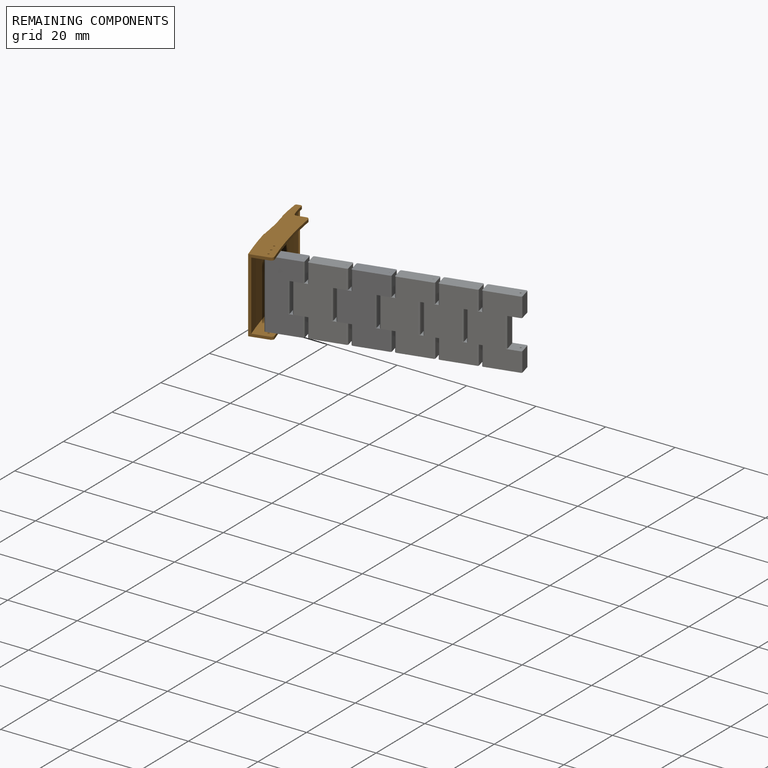
[diagram: remaining components — assembled]
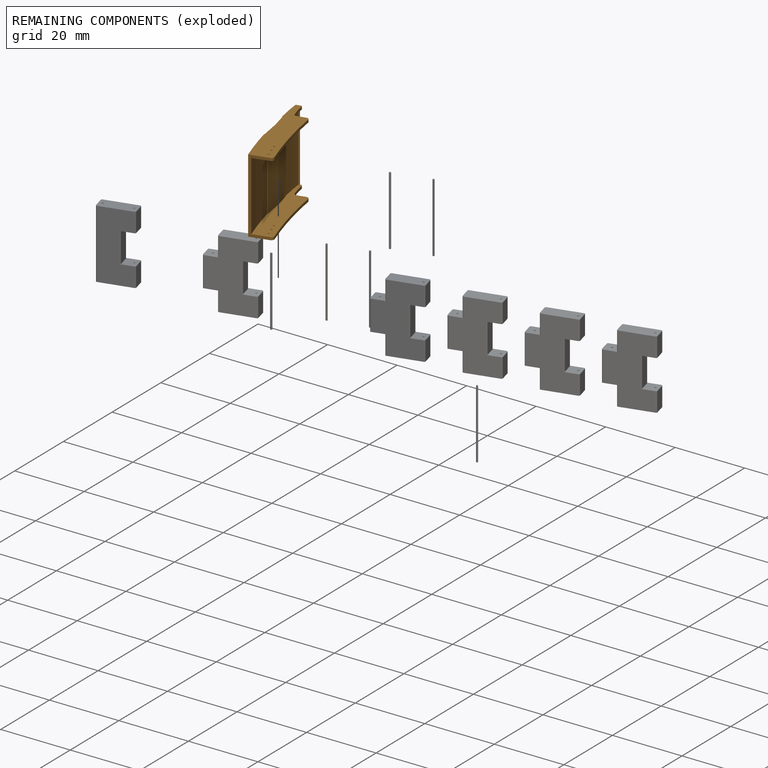
[diagram: remaining components — exploded]
REMAINING COMPONENTS (grouped) — the 1 components below fall outside the per-component tour by the significance rule stated above; both spotlight views highlight the whole group.
  P7: bounding box 29.9 x 21.4 x 6.8 mm, volume 718 mm^3. Held by: REVOLUTE mate "Revolute 2" to P9.
PROVENANCE & LICENSES
Assembly (occurrences, transforms, mates, per-part STEP geometry): AutoMate dataset, Zenodo record 7776208, CC0.
Construction recipes: CADFS (HuggingFace VladPyatov/CADFS, CC-BY-4.0, layered over the ABC dataset), FeatureScript reconstruction programs keyed by ABC model id.
Join: ABC meta listings map ABC model id -> Onshape documentId; within a shared document, parts are matched by geometric signature (bounding-box dims + volume at 0.1% relative tolerance, exact B-rep face/solid counts).
Verification: 12 of this assembly's 13 components carry a recipe attachment, and every attachment is mesh-verified: the CADFS STEP and the AutoMate member STEP were compared as meshes in their shared local frame (symmetric sampled-point-to-mesh distance); worst across the 12 attachments: below the mesh-comparison resolution (tessellation chordal tolerance ~0.0368 mm) on a 25 mm part.
Renders: orthographic iso camera (az 35 / el 25); the floor grid conveys scale (grid pitch printed in each image; no ruler). In the exploded view each component is displaced by its stored offset vector: the offsets alone carry the explosion direction (mate normal/axis signs are not orientation cues and do not encode it), and separation distances are assigned per mate-chain, not proportionally to assembly-order depth.
